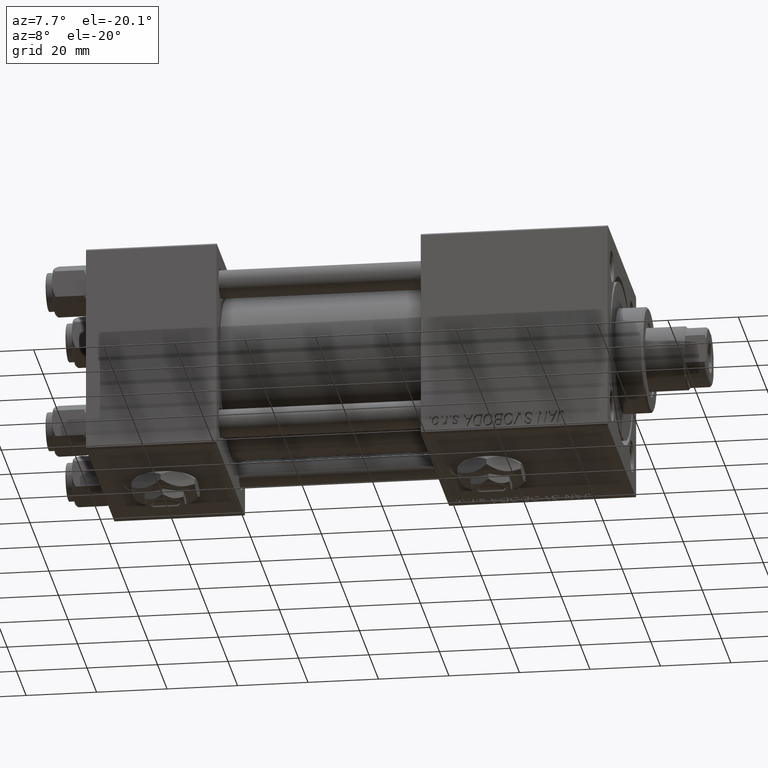
[diagram: clean part render]
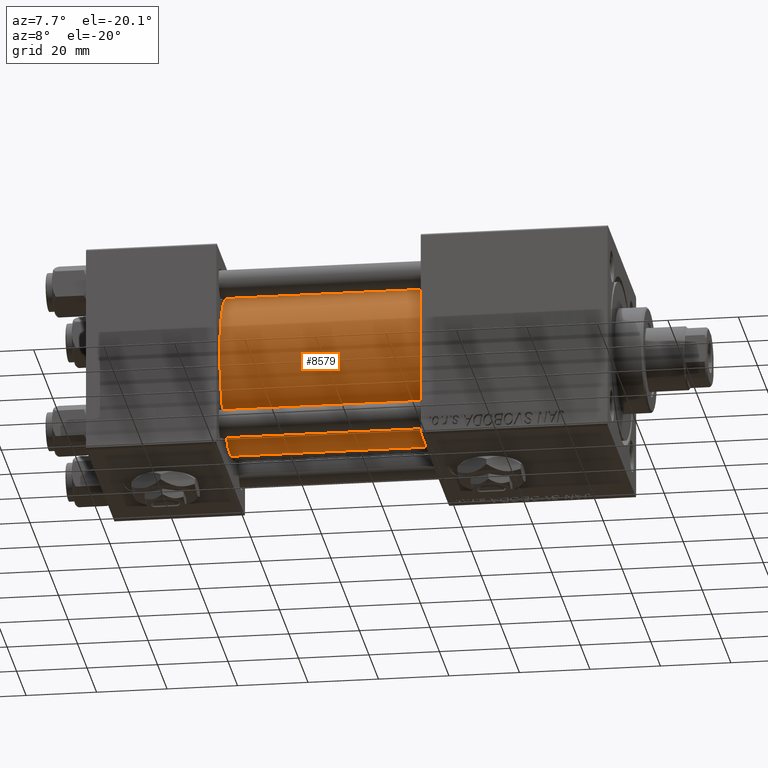
[diagram: same view with one face highlighted and labeled with its STEP entity id]
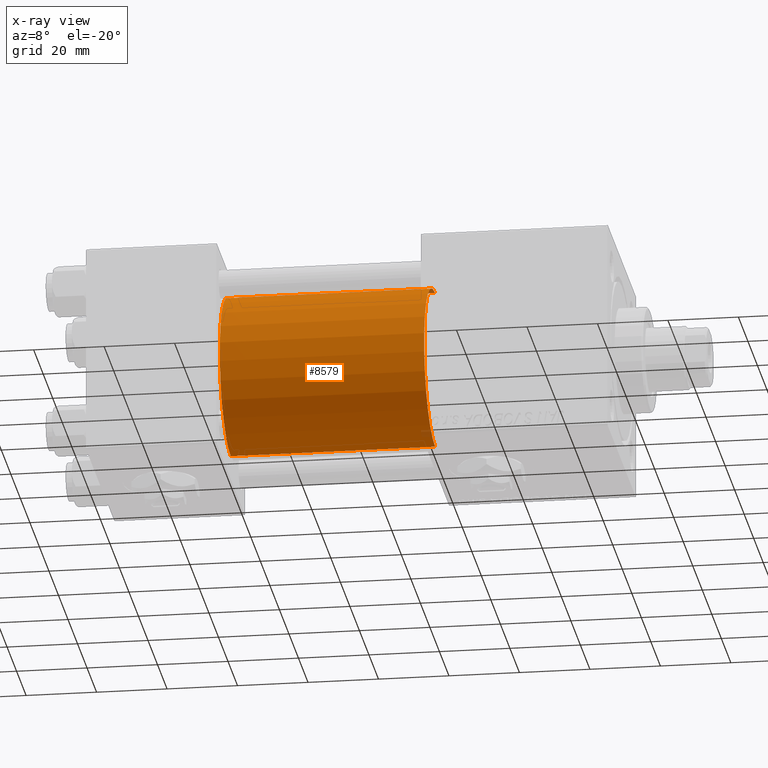
[diagram: x-ray of the same camera — body ghosted, the highlighted face saturated]
A machine part, auxiliary view. The second image highlights one B-rep face of the part: STEP entity #8579.
The next image is the same camera in x-ray: the body ghosted, the highlighted face saturated — about 0% of this face is hidden behind the body in this view.
In plain terms, the highlighted cylindrical surface (partial cylindrical patch) has radius 23 mm, axis along (-1, -0, -0).
Its self-contained STEP definition (entity closure, byte-faithful):
#1245 = EDGE_CURVE ( 'NONE', #29437, #4027, #11081, .T. ) ;
#3057 = CARTESIAN_POINT ( 'NONE',  ( 37.00000000000000000, -2.602085213965210642E-15, 23.00000000000000000 ) ) ;
#3373 = ORIENTED_EDGE ( 'NONE', *, *, #46648, .T. ) ;
#4027 = VERTEX_POINT ( 'NONE', #32654 ) ;
#4910 = DIRECTION ( 'NONE',  ( 0.000000000000000000, 0.000000000000000000, -1.000000000000000000 ) ) ;
#5646 = DIRECTION ( 'NONE',  ( 0.000000000000000000, 0.000000000000000000, 1.000000000000000000 ) ) ;
#7270 = ORIENTED_EDGE ( 'NONE', *, *, #19719, .F. ) ;
#8579 = ADVANCED_FACE ( 'NONE', ( #24669 ), #48745, .T. ) ;
#9139 = CARTESIAN_POINT ( 'NONE',  ( 95.00000000000000000, -2.602085213965210642E-15, 0.000000000000000000 ) ) ;
#9670 = CIRCLE ( 'NONE', #43427, 23.00000000000000000 ) ;
#11081 = LINE ( 'NONE', #34107, #43030 ) ;
#13711 = DIRECTION ( 'NONE',  ( -1.000000000000000000, -0.000000000000000000, -0.000000000000000000 ) ) ;
#14091 = DIRECTION ( 'NONE',  ( 1.000000000000000000, -0.000000000000000000, 0.000000000000000000 ) ) ;
#14517 = CARTESIAN_POINT ( 'NONE',  ( 95.00000000000000000, 2.146024240737012665E-16, -23.00000000000000000 ) ) ;
#19719 = EDGE_CURVE ( 'NONE', #36289, #29437, #9670, .T. ) ;
#20940 = VECTOR ( 'NONE', #13711, 1000.000000000000000 ) ;
#22661 = CARTESIAN_POINT ( 'NONE',  ( 95.00000000000000000, -2.602085213965210642E-15, 23.00000000000000000 ) ) ;
#24669 = FACE_OUTER_BOUND ( 'NONE', #51095, .T. ) ;
#26276 = ORIENTED_EDGE ( 'NONE', *, *, #33170, .T. ) ;
#26635 = ORIENTED_EDGE ( 'NONE', *, *, #1245, .F. ) ;
#26934 = AXIS2_PLACEMENT_3D ( 'NONE', #38166, #14091, #5646 ) ;
#28028 = CARTESIAN_POINT ( 'NONE',  ( 95.00000000000000000, -2.602085213965210642E-15, 23.00000000000000000 ) ) ;
#29404 = CARTESIAN_POINT ( 'NONE',  ( 95.00000000000000000, -2.602085213965210642E-15, 0.000000000000000000 ) ) ;
#29437 = VERTEX_POINT ( 'NONE', #14517 ) ;
#31249 = VERTEX_POINT ( 'NONE', #3057 ) ;
#32157 = AXIS2_PLACEMENT_3D ( 'NONE', #29404, #41314, #36584 ) ;
#32654 = CARTESIAN_POINT ( 'NONE',  ( 37.00000000000000000, 2.146024240737012665E-16, -23.00000000000000000 ) ) ;
#33170 = EDGE_CURVE ( 'NONE', #36289, #31249, #42784, .T. ) ;
#34107 = CARTESIAN_POINT ( 'NONE',  ( 95.00000000000000000, 2.146024240737012665E-16, -23.00000000000000000 ) ) ;
#36289 = VERTEX_POINT ( 'NONE', #28028 ) ;
#36584 = DIRECTION ( 'NONE',  ( 0.000000000000000000, 0.000000000000000000, 1.000000000000000000 ) ) ;
#38166 = CARTESIAN_POINT ( 'NONE',  ( 37.00000000000000000, -2.602085213965210642E-15, 0.000000000000000000 ) ) ;
#39102 = DIRECTION ( 'NONE',  ( -1.000000000000000000, -0.000000000000000000, -0.000000000000000000 ) ) ;
#40073 = DIRECTION ( 'NONE',  ( 1.000000000000000000, 0.000000000000000000, 0.000000000000000000 ) ) ;
#41314 = DIRECTION ( 'NONE',  ( -1.000000000000000000, -0.000000000000000000, -0.000000000000000000 ) ) ;
#42174 = CIRCLE ( 'NONE', #26934, 23.00000000000000000 ) ;
#42784 = LINE ( 'NONE', #22661, #20940 ) ;
#43030 = VECTOR ( 'NONE', #39102, 1000.000000000000000 ) ;
#43427 = AXIS2_PLACEMENT_3D ( 'NONE', #9139, #40073, #4910 ) ;
#46648 = EDGE_CURVE ( 'NONE', #31249, #4027, #42174, .T. ) ;
#48745 = CYLINDRICAL_SURFACE ( 'NONE', #32157, 23.00000000000000000 ) ;
#51095 = EDGE_LOOP ( 'NONE', ( #26635, #7270, #26276, #3373 ) ) ;